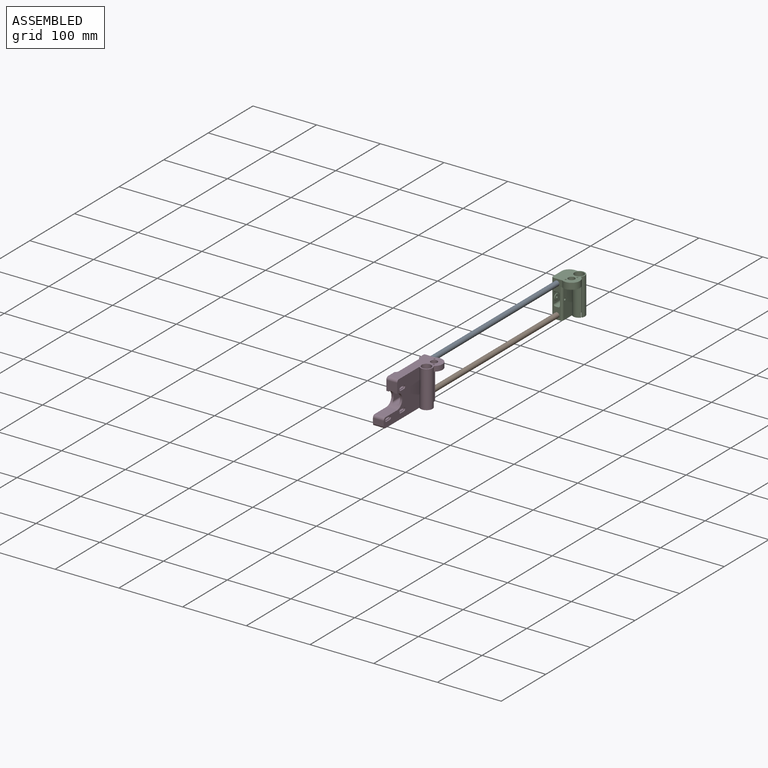
[diagram: assembled view]
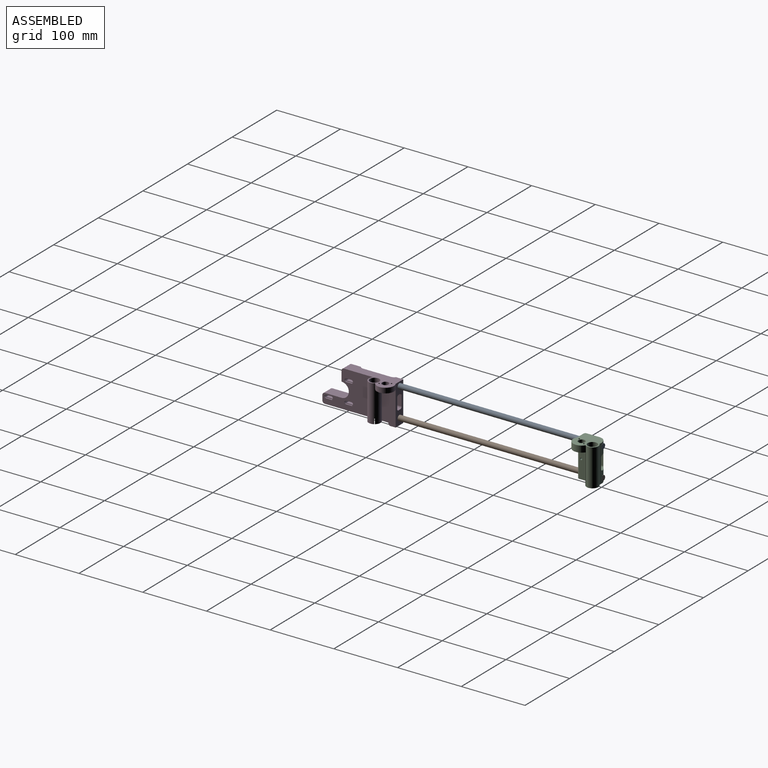
[diagram: assembled view, second angle]
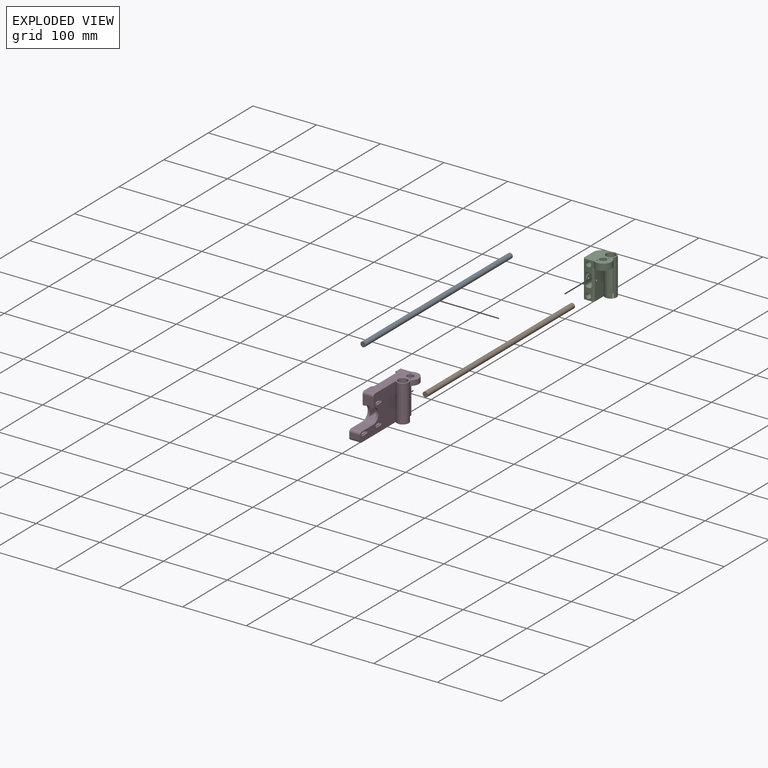
[diagram: exploded view]
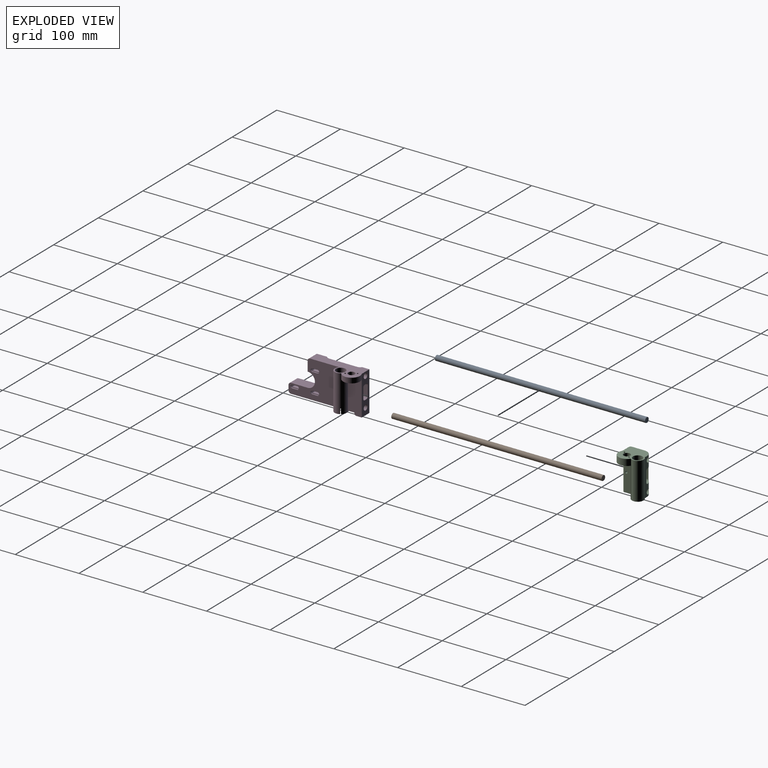
[diagram: exploded view, second angle]
ASSEMBLY  parts=4 mates=4
PART A: 3 faces, bbox 330x8x8 mm
  f0: cylinder r=4mm len=330mm, axis (-1,0,0), area 8293.8mm2, adj f1,f2
  f1: plane 8x8mm, normal (1,0,0), area 50.3mm2, adj f0
  f2: plane 8x8mm, normal (-1,0,0), area 50.3mm2, adj f0
PART B: 3 faces, bbox 330x8x8 mm
  f0: cylinder r=4mm len=330mm, axis (-1,0,0), area 8293.8mm2, adj f1,f2
  f1: plane 8x8mm, normal (1,0,0), area 50.3mm2, adj f0
  f2: plane 8x8mm, normal (-1,0,0), area 50.3mm2, adj f0
PART C: 35 faces, bbox 36.7x39.4x58 mm
  f0: plane 58x14mm, normal (0,-1,0), area 351.3mm2, adj f8,f9,f10,f14,f16,f17,f18,f19
  f1: plane 58x5mm, normal (0,1,0), area 257.2mm2, adj f3,f8,f9,f16,f18,f21,f24,f25
  f2: plane 48x19mm, normal (1,0,0), area 902.9mm2, adj f3,f8,f14,f23,f29
  f3: cylinder r=9.19mm len=58mm, axis (0,0,1), area 2306.4mm2, adj f1,f2,f4,f6,f8,f9,f10,f14
  f4: plane 57x1.31mm, normal (0.63,0.77,0), area 96.9mm2, adj f3,f5,f8,f15
  f5: cylinder r=7.49mm len=58mm, axis (0,0,1), area 2677.8mm2, adj f4,f6,f8,f9,f15
  f6: plane 57x1.33mm, normal (-0.63,-0.77,0), area 97.8mm2, adj f3,f5,f8,f15
  f7: plane 58x20mm, normal (-1,0,0), area 1150.9mm2, adj f8,f9,f22,f28,f30
  f8: plane 37.69x32.69mm, normal (0,0,-1), area 623.6mm2, adj f0,f1,f2,f3,f4,f5,f6,f7
  f9: plane 39.4x36.71mm, normal (0,0,1), area 917.1mm2, adj f0,f1,f3,f5,f7,f10,f11,f12
  f10: cylinder r=13.21mm len=24.36mm, axis (0,0,1), area 408.1mm2, adj f0,f3,f9,f14
  f11: cylinder r=1.22mm len=10mm, axis (0,0,1), area 77mm2, adj f9,f14
  f12: cylinder r=1.25mm len=10mm, axis (0,0,1), area 78.5mm2, adj f9,f14
  f13: cylinder r=5.25mm len=10.5mm, axis (0,0,1), area 329.9mm2, adj f9,f14
  f14: plane 24.36x22.71mm, normal (0,0,-1), area 291.9mm2, adj f0,f2,f3,f10,f11,f12,f13,f29
  f15: plane 1.85x1.84mm, normal (0,0,-1), area 1.6mm2, adj f3,f4,f5,f6
  f16: cylinder r=4.08mm len=35mm, axis (0,1,0), area 872.6mm2, adj f0,f1,f28
  f17: plane 34.91x4mm, normal (0,0,-1), area 137.7mm2, adj f0,f24,f27,f28
  f18: plane 35x16mm, normal (-1,0,0), area 481.5mm2, adj f0,f1,f24,f25,f33
  f19: plane 34.91x4mm, normal (0,0,1), area 137.7mm2, adj f0,f25,f26,f28
  f20: plane 31.47x16mm, normal (1,0,0), area 425mm2, adj f0,f26,f27,f28,f34
  f21: cylinder r=4.08mm len=35mm, axis (0,1,0), area 872.6mm2, adj f0,f1,f28
  f22: cylinder r=1.7mm len=4.46mm, axis (1,0,0), area 47.6mm2, adj f7,f31
  f23: cylinder r=1.7mm len=4.46mm, axis (1,0,0), area 47.6mm2, adj f2,f32
  f24: cylinder r=3mm len=35mm, axis (0,1,0), area 164.9mm2, adj f0,f1,f17,f18,f28
  f25: cylinder r=3mm len=35mm, axis (0,-1,0), area 164.9mm2, adj f0,f1,f18,f19,f28
  f26: cylinder r=3mm len=33.67mm, axis (0,1,0), area 152.5mm2, adj f0,f19,f20,f28
  f27: cylinder r=3mm len=33.67mm, axis (0,-1,0), area 152.5mm2, adj f0,f17,f20,f28
  f28: cylinder r=12mm len=58mm, axis (0,0,-1), area 782.7mm2, adj f1,f7,f8,f9,f16,f17,f19,f20
  f29: cylinder r=3mm len=48mm, axis (0,0,-1), area 226.2mm2, adj f0,f2,f8,f14
  f30: cylinder r=3mm len=58mm, axis (0,0,1), area 273.3mm2, adj f0,f7,f8,f9
  f31: plane 8x8mm, normal (1,0,0), area 41.2mm2, adj f22,f34
  f32: plane 8x8mm, normal (-1,0,0), area 41.2mm2, adj f23,f33
  f33: torus R=4mm, axis (1,0,0), area 44.5mm2, adj f18,f32
  f34: torus R=4mm, axis (-1,0,0), area 44.5mm2, adj f20,f31
PART D: 73 faces, bbox 36.7x116.7x62 mm
  f0: plane 99.5x32.86mm, normal (0,0,1), area 1607.2mm2, adj f1,f16,f17,f18,f19,f20,f21,f22
  f1: plane 79.76x58mm, normal (1,0,0), area 2945.1mm2, adj f0,f15,f20,f24,f33,f34,f35,f44
  f2: cylinder r=1.6mm len=15mm, axis (-1,0,0), area 75.4mm2, adj f3,f5,f21,f61
  f3: plane 15x7.89mm, normal (0,0,-1), area 118.4mm2, adj f2,f4,f21,f61
  f4: cylinder r=1.6mm len=15mm, axis (-1,0,0), area 75.4mm2, adj f3,f5,f21,f61
  f5: plane 15x7.89mm, normal (0,0,1), area 118.4mm2, adj f2,f4,f21,f61
  f6: cylinder r=1.6mm len=15mm, axis (-1,0,0), area 75.4mm2, adj f7,f9,f21,f56
  f7: plane 15x8mm, normal (0,0,-1), area 120mm2, adj f6,f8,f21,f56
  f8: cylinder r=1.6mm len=15mm, axis (-1,0,0), area 75.4mm2, adj f7,f9,f21,f56
  f9: plane 15x8mm, normal (0,0,1), area 120mm2, adj f6,f8,f21,f56
  f10: cylinder r=1.6mm len=15mm, axis (-1,0,0), area 75.4mm2, adj f11,f13,f21,f51
  f11: plane 15x8mm, normal (0,0,-1), area 120mm2, adj f10,f12,f21,f51
  f12: cylinder r=1.6mm len=15mm, axis (-1,0,0), area 75.4mm2, adj f11,f13,f21,f51
  f13: plane 15x8mm, normal (0,0,1), area 120mm2, adj f10,f12,f21,f51
  f14: plane 62x17mm, normal (0,-1,0), area 737.3mm2, adj f16,f23,f24,f25,f36,f37,f38,f39
  f15: plane 17x15.5mm, normal (0,1,0), area 252mm2, adj f1,f21,f35,f36,f46,f69,f72
  f16: plane 54x21.76mm, normal (1,0,0), area 1132mm2, adj f0,f14,f20,f29,f62,f65,f68
  f17: plane 57x1.46mm, normal (0.63,0.78,0), area 106.6mm2, adj f0,f18,f20,f30
  f18: cylinder r=7.49mm len=58mm, axis (0,0,-1), area 2677.8mm2, adj f0,f17,f19,f24,f30
  f19: plane 57x1.47mm, normal (-0.63,-0.78,0), area 107.5mm2, adj f0,f18,f20,f30
  f20: cylinder r=9.36mm len=58mm, axis (0,0,-1), area 2363.1mm2, adj f0,f1,f16,f17,f19,f24,f25,f29
  f21: plane 58x48.5mm, normal (-1,0,0), area 1219.4mm2, adj f0,f2,f3,f4,f5,f6,f7,f8
  f22: plane 58x43.76mm, normal (-1,0,0), area 2538.3mm2, adj f0,f24,f31,f32
  f23: plane 62x11.5mm, normal (-1,0,0), area 711.1mm2, adj f14,f24,f32,f62,f65,f68
  f24: plane 82.71x36.71mm, normal (0,0,-1), area 1581.7mm2, adj f1,f14,f18,f20,f21,f22,f23,f25
  f25: cylinder r=13.21mm len=24.26mm, axis (0,0,-1), area 325.1mm2, adj f14,f20,f24,f29
  f26: cylinder r=1.22mm len=8mm, axis (0,0,-1), area 61.6mm2, adj f24,f29
  f27: cylinder r=1.25mm len=8mm, axis (0,0,-1), area 62.8mm2, adj f24,f29
  f28: cylinder r=5.25mm len=10.5mm, axis (0,0,-1), area 263.9mm2, adj f24,f29
  f29: plane 24.26x19.71mm, normal (0,0,1), area 287.3mm2, adj f16,f20,f25,f26,f27,f28
  f30: plane 1.99x1.94mm, normal (0,0,1), area 1.7mm2, adj f17,f18,f19,f20
  f31: cylinder r=6.76mm len=58mm, axis (0,0,1), area 384.6mm2, adj f0,f21,f22,f24
  f32: cylinder r=6.76mm len=58mm, axis (0,0,1), area 384.6mm2, adj f0,f22,f23,f24
  f33: plane 26x17mm, normal (0,0,-1), area 442mm2, adj f1,f21,f35,f45
  f34: plane 17x7.5mm, normal (0,1,0), area 127.5mm2, adj f1,f21,f44,f45
  f35: cylinder r=11.5mm len=23mm, axis (-1,0,0), area 338.2mm2, adj f1,f15,f21,f33,f37,f38,f39,f69
  f36: plane 85x4mm, normal (0,0,1), area 340mm2, adj f14,f15,f69,f72
  f37: plane 79.32x16mm, normal (-1,0,0), area 1196.2mm2, adj f14,f35,f69,f70
  f38: plane 77.84x4mm, normal (0,0,-1), area 311.4mm2, adj f14,f35,f70,f71
  f39: plane 79.32x16mm, normal (1,0,0), area 1196.2mm2, adj f14,f35,f71,f72
  f40: cylinder r=4.08mm len=10mm, axis (0,-1,0), area 256.1mm2, adj f14,f41
  f41: plane 8.15x8.15mm, normal (0,-1,0), area 52.2mm2, adj f40
  f42: cylinder r=4.08mm len=10mm, axis (0,-1,0), area 256.1mm2, adj f14,f43
  f43: plane 8.15x8.15mm, normal (0,-1,0), area 52.2mm2, adj f42
  f44: cylinder r=4mm len=17mm, axis (-1,0,0), area 106.8mm2, adj f0,f1,f21,f34
  f45: cylinder r=4mm len=17mm, axis (1,0,0), area 106.8mm2, adj f1,f21,f33,f34
  f46: cylinder r=4mm len=17mm, axis (-1,0,0), area 106.8mm2, adj f1,f15,f21,f24
  f47: plane 8x2mm, normal (0,0,1), area 16mm2, adj f1,f48,f50,f51
  f48: cylinder r=2.6mm len=5.2mm, axis (1,0,0), area 16.3mm2, adj f1,f47,f49,f51
  f49: plane 8x2mm, normal (0,0,-1), area 16mm2, adj f1,f48,f50,f51
  f50: cylinder r=2.6mm len=5.2mm, axis (1,0,0), area 16.3mm2, adj f1,f47,f49,f51
  f51: plane 13.2x5.2mm, normal (1,0,0), area 29.2mm2, adj f10,f11,f12,f13,f47,f48,f49,f50
  f52: plane 8x2mm, normal (0,0,1), area 16mm2, adj f1,f53,f55,f56
  f53: cylinder r=2.6mm len=5.2mm, axis (1,0,0), area 16.3mm2, adj f1,f52,f54,f56
  f54: plane 8x2mm, normal (0,0,-1), area 16mm2, adj f1,f53,f55,f56
  f55: cylinder r=2.6mm len=5.2mm, axis (1,0,0), area 16.3mm2, adj f1,f52,f54,f56
  f56: plane 13.2x5.2mm, normal (1,0,0), area 29.2mm2, adj f6,f7,f8,f9,f52,f53,f54,f55
  f57: plane 7.89x2mm, normal (0,0,1), area 15.8mm2, adj f1,f58,f60,f61
  f58: cylinder r=2.6mm len=5.2mm, axis (1,0,0), area 16.3mm2, adj f1,f57,f59,f61
  f59: plane 7.89x2mm, normal (0,0,-1), area 15.8mm2, adj f1,f58,f60,f61
  f60: cylinder r=2.6mm len=5.2mm, axis (1,0,0), area 16.3mm2, adj f1,f57,f59,f61
  f61: plane 13.09x5.2mm, normal (1,0,0), area 29mm2, adj f2,f3,f4,f5,f57,f58,f59,f60
  f62: plane 17x1mm, normal (0,1,0), area 17mm2, adj f0,f16,f23,f68
  f63: cylinder r=1.05mm len=4mm, axis (0,0,-1), area 26.4mm2, adj f65,f67
  f64: cylinder r=1.05mm len=4mm, axis (0,0,-1), area 26.4mm2, adj f65,f66
  f65: plane 17x8.5mm, normal (0,0,1), area 137.6mm2, adj f14,f16,f23,f63,f64,f68
  f66: plane 2.1x2.1mm, normal (0,0,1), area 3.5mm2, adj f64
  f67: plane 2.1x2.1mm, normal (0,0,1), area 3.5mm2, adj f63
  f68: cylinder r=3mm len=17mm, axis (1,0,0), area 80.1mm2, adj f16,f23,f62,f65
  f69: cylinder r=3mm len=85mm, axis (0,-1,0), area 394.6mm2, adj f14,f15,f35,f36,f37
  f70: cylinder r=3mm len=77.84mm, axis (0,1,0), area 361.7mm2, adj f14,f35,f37,f38
  f71: cylinder r=3mm len=77.84mm, axis (0,-1,0), area 361.7mm2, adj f14,f35,f38,f39
  f72: cylinder r=3mm len=85mm, axis (0,1,0), area 394.6mm2, adj f14,f15,f35,f36,f39
PLACE A rot(axis=(0.58,-0.58,-0.58),120deg) t=(6.47,-57.64,45.53)mm
PLACE B rot(axis=(0,0,1),90deg) t=(-4.53,-57.64,11.53)mm
PLACE C rot(axis=(0,1,0),0deg) t=(141.9,64.86,63.12)mm
PLACE D rot(axis=(1,0,0),180deg) t=(59.84,-252.41,31.75)mm fixed
MATE fastened A.f0 <-> D.f42  axis (0,-1,0) through (6.47,-222.64,56.53)mm
MATE fastened B.f0 <-> C.f16  axis (0,1,0) through (6.47,107.36,11.53)mm
MATE fastened B.f0 <-> D.f40  axis (0,-1,0) through (6.47,-222.64,11.53)mm
MATE fastened A.f0 <-> C.f21  axis (0,1,0) through (6.47,107.36,56.53)mm
